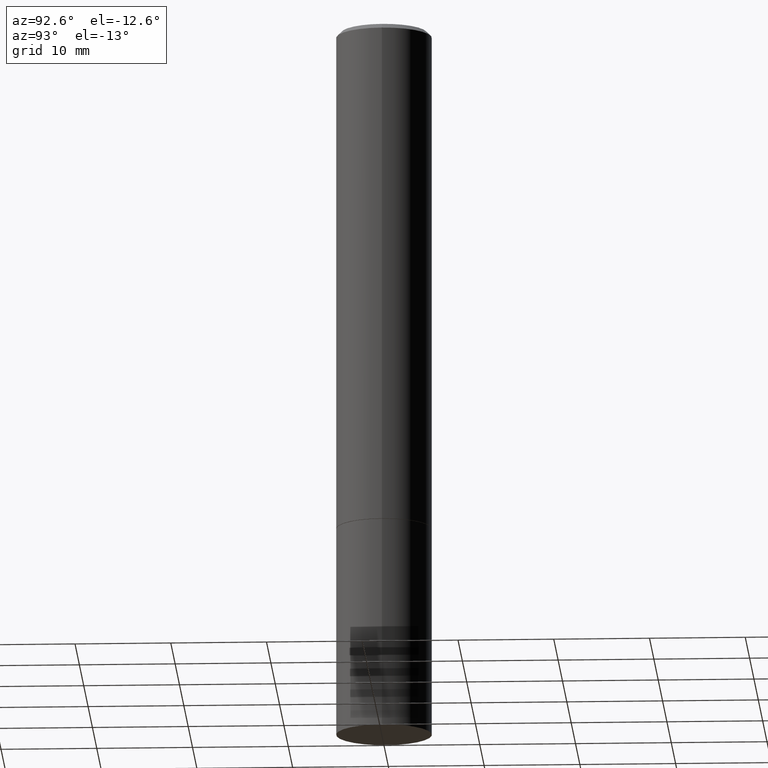
[diagram: clean part render]
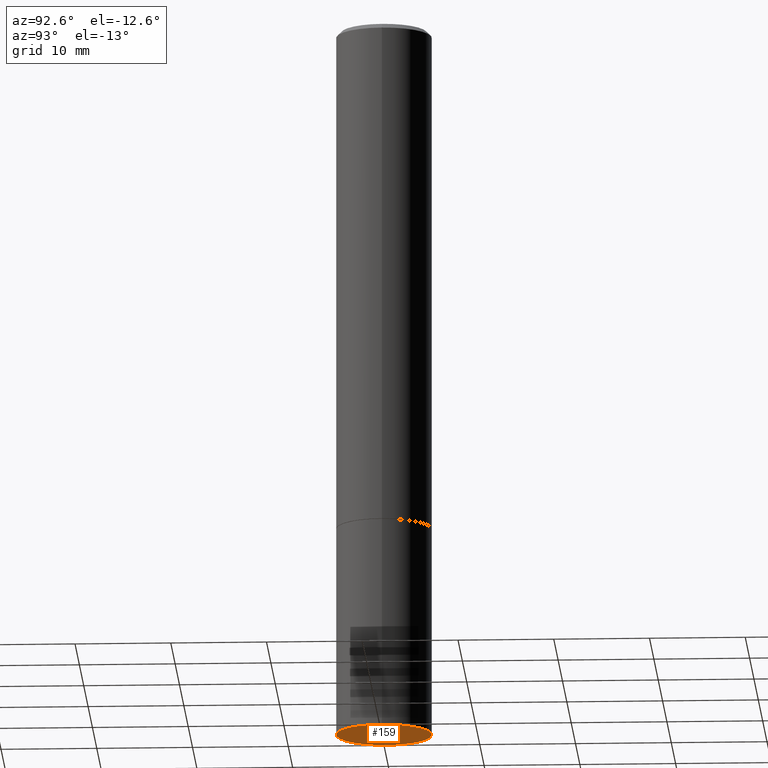
[diagram: same view with one face highlighted and labeled with its STEP entity id]
A machine part, auxiliary view. The second image highlights one B-rep face of the part: STEP entity #159.
In plain terms, the highlighted planar face has unit normal (0, -0, -1).
Its self-contained STEP definition (entity closure, byte-faithful):
#2 = DIRECTION ( 'NONE',  ( -2.445468806185136597E-29, 3.491481338843145583E-15, 1.000000000000000000 ) ) ;
#25 = DIRECTION ( 'NONE',  ( 2.438088387897960049E-29, -3.491481338843145188E-15, -1.000000000000000000 ) ) ;
#33 = CARTESIAN_POINT ( 'NONE',  ( 1.374596203102613789E-15, 0.1968499999999896999, -2.952800000000000313 ) ) ;
#56 = CIRCLE ( 'NONE', #180, 0.1968500000000000250 ) ;
#57 = CARTESIAN_POINT ( 'NONE',  ( 7.220980290903470182E-29, -1.030964609733603853E-14, -2.952799999999999869 ) ) ;
#87 = CARTESIAN_POINT ( 'NONE',  ( 0.1968500000000000250, -1.168424230043858014E-14, -2.952799999999999869 ) ) ;
#96 = DIRECTION ( 'NONE',  ( -1.000000000000000000, 6.982962677686265922E-15, -4.876176775795935793E-29 ) ) ;
#113 = CIRCLE ( 'NONE', #178, 0.1968500000000000250 ) ;
#127 = VERTEX_POINT ( 'NONE', #87 ) ;
#150 = PLANE ( 'NONE',  #345 ) ;
#151 = FACE_OUTER_BOUND ( 'NONE', #349, .T. ) ;
#159 = ADVANCED_FACE ( 'NONE', ( #151 ), #150, .T. ) ;
#178 = AXIS2_PLACEMENT_3D ( 'NONE', #366, #342, #336 ) ;
#180 = AXIS2_PLACEMENT_3D ( 'NONE', #57, #2, #284 ) ;
#206 = EDGE_CURVE ( 'NONE', #263, #127, #56, .T. ) ;
#219 = EDGE_CURVE ( 'NONE', #127, #263, #113, .T. ) ;
#263 = VERTEX_POINT ( 'NONE', #314 ) ;
#284 = DIRECTION ( 'NONE',  ( 1.000000000000000000, -6.982962677686267499E-15, 0.000000000000000000 ) ) ;
#304 = ORIENTED_EDGE ( 'NONE', *, *, #219, .F. ) ;
#314 = CARTESIAN_POINT ( 'NONE',  ( -0.1968500000000000250, -7.398956728206258518E-15, -2.952799999999999869 ) ) ;
#336 = DIRECTION ( 'NONE',  ( 1.000000000000000000, -6.982962677686267499E-15, 0.000000000000000000 ) ) ;
#342 = DIRECTION ( 'NONE',  ( -2.445468806185136597E-29, 3.491481338843145583E-15, 1.000000000000000000 ) ) ;
#345 = AXIS2_PLACEMENT_3D ( 'NONE', #33, #25, #96 ) ;
#349 = EDGE_LOOP ( 'NONE', ( #304, #354 ) ) ;
#354 = ORIENTED_EDGE ( 'NONE', *, *, #206, .F. ) ;
#366 = CARTESIAN_POINT ( 'NONE',  ( 7.220980290903470182E-29, -1.030964609733603853E-14, -2.952799999999999869 ) ) ;